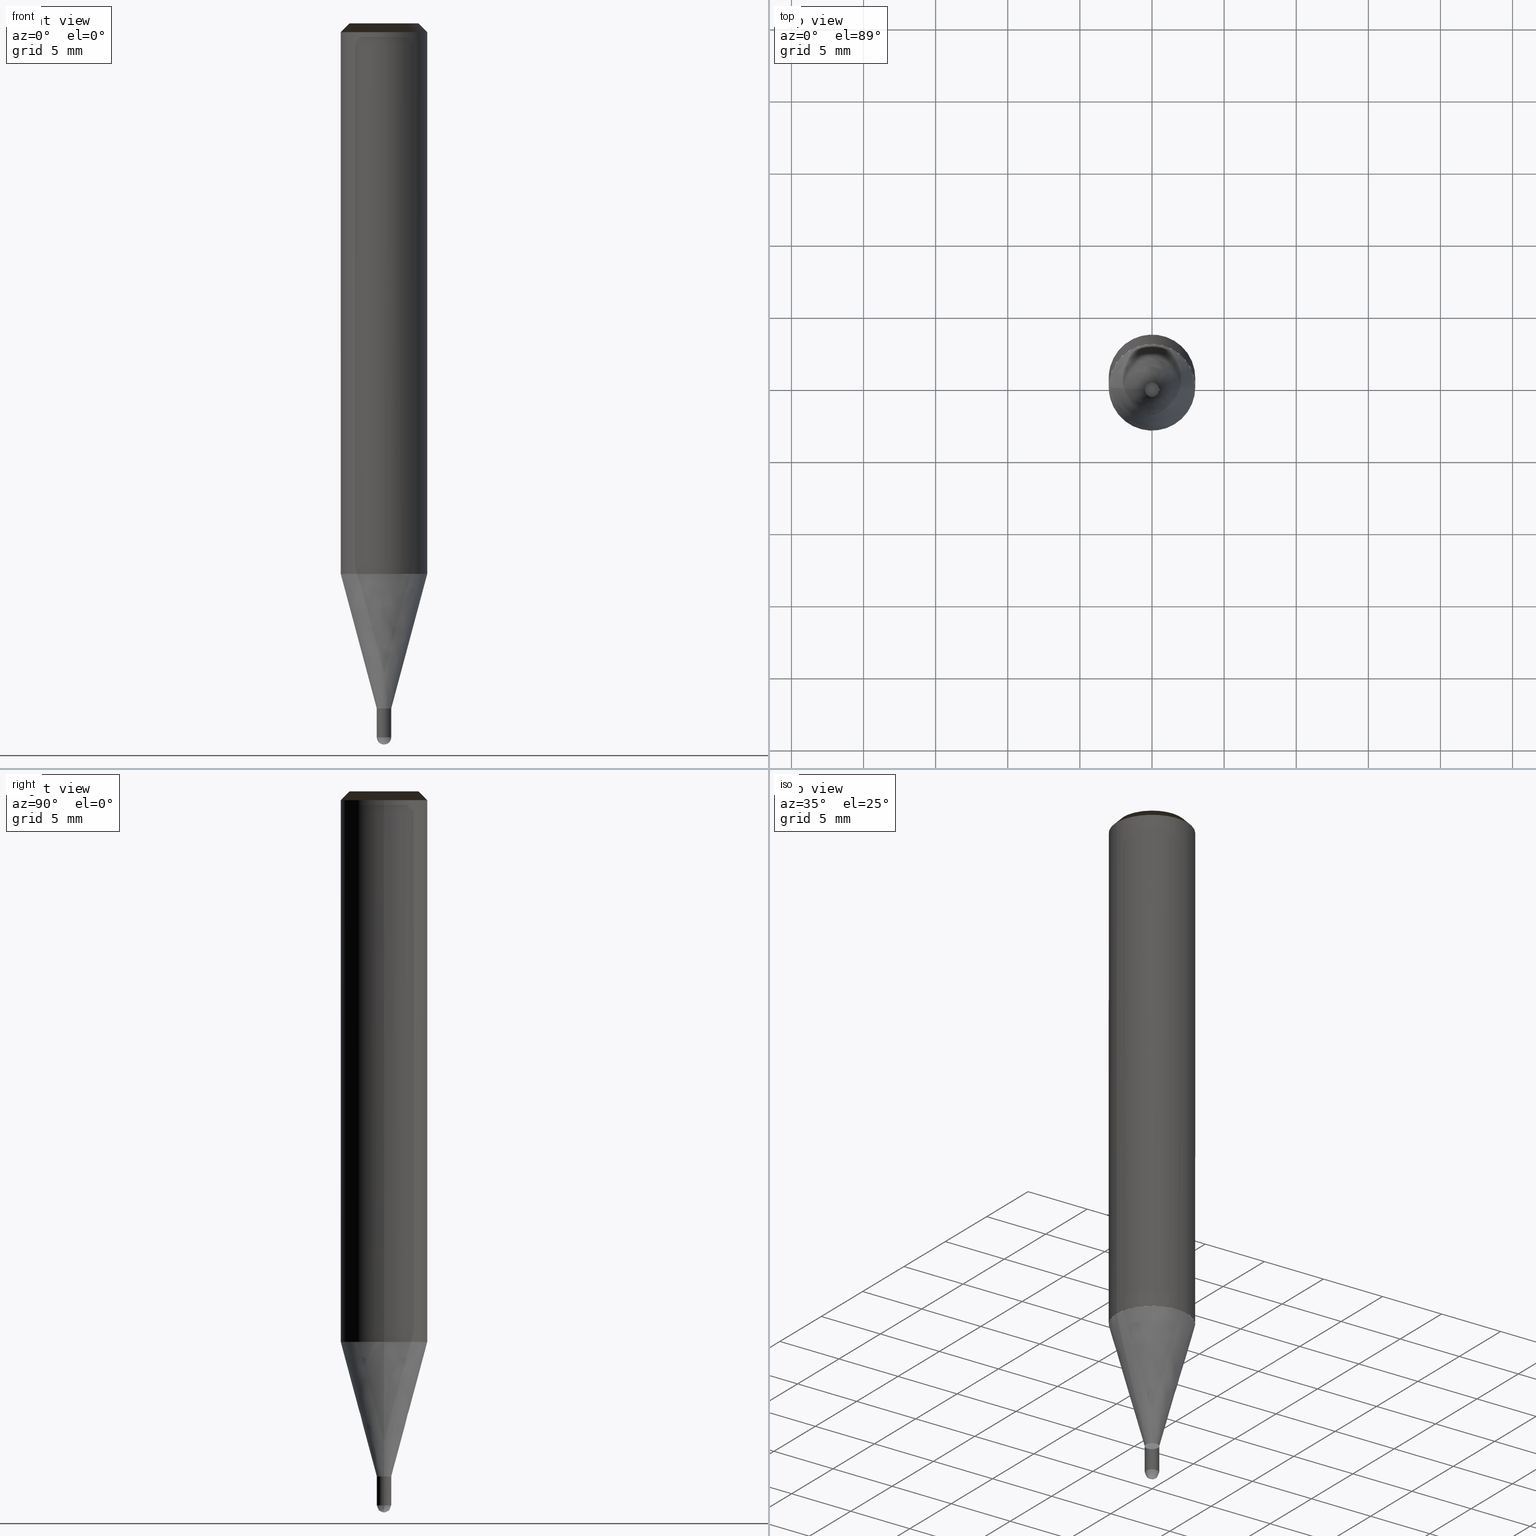
[diagram: canonical four-view strip — front | top / right | iso, engineering-drawing reading convention]
A machine part, canonical four-view strip (front | top / right | iso — engineering-drawing reading convention). The complete STEP part file that produces these views, byte-faithful:
ISO-10303-21;
HEADER;
/* Generated by ISBE GmbH (www.isbe.de) */
/* OPTION: using custom schema-name function */

FILE_DESCRIPTION(
/* description */ (''),
/* implementation_level */ '2;1');

FILE_NAME(
/*name*/ 'SHBS-2010-S06-STH',
/*time_stamp*/'2023-9-12T13:43:45',
/*author*/ ('ISBE GmbH'),
/*organization*/ ('ISBE GmbH'),
/*preprocessor_version*/ 'STEP IO v1.0',
/*originating_system*/ '',
/*authorisation*/ '');

FILE_SCHEMA (('AUTOMOTIVE_DESIGN'));
ENDSEC;

DATA;
#10=SHAPE_DEFINITION_REPRESENTATION(#11,#57);
#11=PRODUCT_DEFINITION_SHAPE('Document','',#13);
#12=PRODUCT_DEFINITION_CONTEXT('3D Mechanical Parts',#17,'design');
#13=PRODUCT_DEFINITION('A','First version',#14,#12);
#14=PRODUCT_DEFINITION_FORMATION_WITH_SPECIFIED_SOURCE('A','First version',#19,.MADE.);
#15=PRODUCT_RELATED_PRODUCT_CATEGORY('tool','tool',(#19));
#16=APPLICATION_PROTOCOL_DEFINITION('Draft International Standard', 'automotive_design',1999,#17);
#17=APPLICATION_CONTEXT('data for automotive mechanical design processes');
#18=PRODUCT_CONTEXT('3D Mechanical Parts',#17,'mechanical');
#19=PRODUCT('Document','Document','ISBE converted to STEP',(#18));
#20=(
LENGTH_UNIT()
NAMED_UNIT(*)
SI_UNIT(.MILLI.,.METRE.)
);
#21=(
NAMED_UNIT(*)
PLANE_ANGLE_UNIT()
SI_UNIT($,.RADIAN.)
);
#22=DIMENSIONAL_EXPONENTS(0.,0.,0.,0.,0.,0.,0.);
#23=PLANE_ANGLE_MEASURE_WITH_UNIT(PLANE_ANGLE_MEASURE(0.01745329252),#21);
#24=(
CONVERSION_BASED_UNIT('DEGREES',#23)
NAMED_UNIT(#22)
PLANE_ANGLE_UNIT()
);
#25=(
NAMED_UNIT(*)
SI_UNIT($,.STERADIAN.)
SOLID_ANGLE_UNIT()
);
#26=UNCERTAINTY_MEASURE_WITH_UNIT(LENGTH_MEASURE(0.001),#20, 'DISTANCE_ACCURACY_VALUE', 'Maximum model space distance between geometric entities at asserted connectivities');
#27=(
GEOMETRIC_REPRESENTATION_CONTEXT(3)
GLOBAL_UNCERTAINTY_ASSIGNED_CONTEXT((#26))
GLOBAL_UNIT_ASSIGNED_CONTEXT((#25,#24,#20))
REPRESENTATION_CONTEXT('ID1','3D')
);
#28=CARTESIAN_POINT('',(0.0,0.0,0.0));
#29=DIRECTION('',(1.0,0.0,0.0));
#30=DIRECTION('',(0.0,0.0,1.0));
#31=AXIS2_PLACEMENT_3D('',#28,#30,#29);
#32=CARTESIAN_POINT('',(0.0,0.0,0.0));
#33=DIRECTION('',(1.0,0.0,0.0));
#34=DIRECTION('',(0.0,0.0,1.0));
#35=AXIS2_PLACEMENT_3D('',#32,#34,#33);
#36=CARTESIAN_POINT('',(0.0,0.0,0.0));
#37=DIRECTION('',(1.0,0.0,0.0));
#38=DIRECTION('',(0.0,0.0,1.0));
#39=AXIS2_PLACEMENT_3D('',#36,#38,#37);
#40=CARTESIAN_POINT('',(0.0,0.0,0.0));
#41=DIRECTION('',(0.0,0.0,1.0));
#42=DIRECTION('',(1.0,0.0,0.0));
#43=AXIS2_PLACEMENT_3D('MCS',#40,#42,#41);
#44=CARTESIAN_POINT('',(0.0,0.0,38.169));
#45=DIRECTION('',(0.0,0.0,1.0));
#46=DIRECTION('',(1.0,0.0,0.0));
#47=AXIS2_PLACEMENT_3D('PCS',#44,#46,#45);
#48=CARTESIAN_POINT('',(0.0,0.0,-11.831));
#49=DIRECTION('',(0.0,0.0,1.0));
#50=DIRECTION('',(1.0,0.0,0.0));
#51=AXIS2_PLACEMENT_3D('CIP',#48,#50,#49);
#52=CARTESIAN_POINT('',(0.0,-0.5,-11.831));
#53=DIRECTION('',(0.0,0.0,1.0));
#54=DIRECTION('',(1.0,0.0,0.0));
#55=AXIS2_PLACEMENT_3D('CRP',#52,#54,#53);
#57=SHAPE_REPRESENTATION('Document',(#31,#35,#39,#43,#47,#51,#55),#27);
#58=DIRECTION('',(1.0,0.0,0.0));
#59=DIRECTION('',(0.0,0.0,1.0));
#60=CARTESIAN_POINT('',(-0.004999745345,-0.00005046272,-11.830919850466));
#61=CARTESIAN_POINT('',(-0.004842960385,-0.015276506175,-11.8307431081));
#62=CARTESIAN_POINT('',(-0.00464572897,-0.031696458389,-11.829972696375));
#63=CARTESIAN_POINT('',(-0.004394710529,-0.047809956029,-11.828689556475));
#64=CARTESIAN_POINT('',(-0.00405990923,-0.063809554592,-11.826895006912));
#65=CARTESIAN_POINT('',(-0.003613461023,-0.079718094076,-11.824590891707));
#66=CARTESIAN_POINT('',(-0.00302835103,-0.095531326913,-11.821779578496));
#67=CARTESIAN_POINT('',(-0.002278364859,-0.111237136631,-11.818463956091));
#68=CARTESIAN_POINT('',(-0.001338183743,-0.126820232017,-11.81464743152));
#69=CARTESIAN_POINT('',(-0.000183509393,-0.142263674959,-11.810333926518));
#70=CARTESIAN_POINT('',(0.001208804149,-0.157549471783,-11.805527873505));
#71=CARTESIAN_POINT('',(0.00286061822,-0.17265883142,-11.800234211025));
#72=CARTESIAN_POINT('',(0.004792379331,-0.187572290966,-11.794458378673));
#73=CARTESIAN_POINT('',(0.007022992398,-0.202269785918,-11.788206311508));
#74=CARTESIAN_POINT('',(0.009569698402,-0.216730698426,-11.781484433951));
#75=CARTESIAN_POINT('',(0.012447957291,-0.230933899296,-11.774299653187));
#76=CARTESIAN_POINT('',(0.015671336936,-0.244857791707,-11.766659352062));
#77=CARTESIAN_POINT('',(0.019251408963,-0.258480360904,-11.758571381503));
#78=CARTESIAN_POINT('',(0.023197652257,-0.271779232171,-11.750044052446));
#79=CARTESIAN_POINT('',(0.027517364988,-0.284731738346,-11.741086127298));
#80=CARTESIAN_POINT('',(0.032215585999,-0.297314997418,-11.731706810934));
#81=CARTESIAN_POINT('',(0.037295026389,-0.309506000365,-11.721915741234));
#82=CARTESIAN_POINT('',(0.042756012132,-0.321281709015,-11.711722979185));
#83=CARTESIAN_POINT('',(0.048596438531,-0.332619163494,-11.701138998538));
#84=CARTESIAN_POINT('',(0.054811737272,-0.343495598605,-11.690174675049));
#85=CARTESIAN_POINT('',(0.061394856808,-0.353888568272,-11.678841275302));
#86=CARTESIAN_POINT('',(0.06833625671,-0.363776077082,-11.667150445131));
#87=CARTESIAN_POINT('',(0.075623916555,-0.373136717738,-11.655114197654));
#88=CARTESIAN_POINT('',(0.083243359847,-0.381949813177,-11.642744900929));
#89=CARTESIAN_POINT('',(0.091177693304,-0.390195561959,-11.630055265246));
#90=CARTESIAN_POINT('',(0.099407661785,-0.397855185439,-11.617058330061));
#91=CARTESIAN_POINT('',(0.107911718954,-0.404911075179,-11.603767450605));
#92=CARTESIAN_POINT('',(0.116666113651,-0.411346938977,-11.590196284155));
#93=CARTESIAN_POINT('',(0.125644991799,-0.417147943869,-11.576358776002));
#94=CARTESIAN_POINT('',(0.134820513492,-0.422300854436,-11.56226914512));
#95=CARTESIAN_POINT('',(0.144162984768,-0.426794164739,-11.547941869559));
#96=CARTESIAN_POINT('',(0.153641003417,-0.430618222271,-11.533391671561));
#97=CARTESIAN_POINT('',(0.163221617973,-0.433765342309,-11.51863350244));
#98=CARTESIAN_POINT('',(0.172870498926,-0.436229911167,-11.503682527211));
#99=CARTESIAN_POINT('',(0.182552121012,-0.438008476913,-11.488554109012));
#100=CARTESIAN_POINT('',(0.192229955294,-0.439099826235,-11.473263793316));
#101=CARTESIAN_POINT('',(0.201866669635,-0.43950504628,-11.457827291955));
#102=CARTESIAN_POINT('',(0.211424336029,-0.439227570426,-11.442260466978));
#103=CARTESIAN_POINT('',(0.220864643153,-0.438273207113,-11.426579314351));
#104=CARTESIAN_POINT('',(0.230149112446,-0.436650151055,-11.410799947517));
#105=CARTESIAN_POINT('',(0.239239315921,-0.434368976329,-11.394938580842));
#106=CARTESIAN_POINT('',(0.248097093905,-0.431442611039,-11.379011512954));
#107=CARTESIAN_POINT('',(0.256684770868,-0.427886293462,-11.36303510999));
#108=CARTESIAN_POINT('',(0.264965367515,-0.4237175098,-11.347025788786));
#109=CARTESIAN_POINT('',(0.272902807337,-0.418955913847,-11.331));
#110=CARTESIAN_POINT('',(0.30899103303,-0.393096097038,-11.254076923077));
#111=CARTESIAN_POINT('',(0.342643061986,-0.364136968835,-11.177153846154));
#112=CARTESIAN_POINT('',(0.373593569472,-0.332306853449,-11.100230769231));
#113=CARTESIAN_POINT('',(0.401598530525,-0.297856710988,-11.023307692308));
#114=CARTESIAN_POINT('',(0.426437143931,-0.261058158799,-10.946384615385));
#115=CARTESIAN_POINT('',(0.447913573107,-0.22220132994,-10.869461538462));
#116=CARTESIAN_POINT('',(0.465858490137,-0.181592585661,-10.792538461538));
#117=CARTESIAN_POINT('',(0.480130410826,-0.139552099948,-10.715615384615));
#118=CARTESIAN_POINT('',(0.490616810204,-0.096411335151,-10.638692307692));
#119=CARTESIAN_POINT('',(0.497235009715,-0.052510428619,-10.561769230769));
#120=CARTESIAN_POINT('',(0.499932829089,-0.00819551093,-10.484846153846));
#121=CARTESIAN_POINT('',(0.498688997744,0.036184023122,-10.407923076923));
#122=CARTESIAN_POINT('',(0.493513322495,0.080278269287,-10.331));
#123=CARTESIAN_POINT('',(0.484446610233,0.123739572626,-10.254076923077));
#124=CARTESIAN_POINT('',(0.471560346187,0.166225268549,-10.177153846154));
#125=CARTESIAN_POINT('',(0.454956130309,0.207400384508,-10.100230769231));
#126=CARTESIAN_POINT('',(0.434764876227,0.246940281039,-10.023307692308));
#127=CARTESIAN_POINT('',(0.411145779068,0.284533211339,-9.946384615385));
#128=CARTESIAN_POINT('',(0.384285060312,0.319882779188,-9.869461538462));
#129=CARTESIAN_POINT('',(0.354394499554,0.352710275844,-9.792538461538));
#130=CARTESIAN_POINT('',(0.321709764754,0.382756877485,-9.715615384615));
#131=CARTESIAN_POINT('',(0.286488554148,0.409785685868,-9.638692307692));
#132=CARTESIAN_POINT('',(0.249008564463,0.43358359612,-9.561769230769));
#133=CARTESIAN_POINT('',(0.209565301454,0.453962976933,-9.484846153846));
#134=CARTESIAN_POINT('',(0.168469750032,0.470763149922,-9.407923076923));
#135=CARTESIAN_POINT('',(0.126045922344,0.483851656461,-9.331));
#136=CARTESIAN_POINT('',(0.004999745345,0.00005046272,-11.830919850466));
#137=CARTESIAN_POINT('',(0.004842960385,0.015276506175,-11.8307431081));
#138=CARTESIAN_POINT('',(0.00464572897,0.031696458389,-11.829972696375));
#139=CARTESIAN_POINT('',(0.004394710529,0.047809956029,-11.828689556475));
#140=CARTESIAN_POINT('',(0.00405990923,0.063809554592,-11.826895006912));
#141=CARTESIAN_POINT('',(0.003613461023,0.079718094076,-11.824590891707));
#142=CARTESIAN_POINT('',(0.00302835103,0.095531326913,-11.821779578496));
#143=CARTESIAN_POINT('',(0.002278364859,0.111237136631,-11.818463956091));
#144=CARTESIAN_POINT('',(0.001338183743,0.126820232017,-11.81464743152));
#145=CARTESIAN_POINT('',(0.000183509393,0.142263674959,-11.810333926518));
#146=CARTESIAN_POINT('',(-0.001208804149,0.157549471783,-11.805527873505));
#147=CARTESIAN_POINT('',(-0.00286061822,0.17265883142,-11.800234211025));
#148=CARTESIAN_POINT('',(-0.004792379331,0.187572290966,-11.794458378673));
#149=CARTESIAN_POINT('',(-0.007022992398,0.202269785918,-11.788206311508));
#150=CARTESIAN_POINT('',(-0.009569698402,0.216730698426,-11.781484433951));
#151=CARTESIAN_POINT('',(-0.012447957291,0.230933899296,-11.774299653187));
#152=CARTESIAN_POINT('',(-0.015671336936,0.244857791707,-11.766659352062));
#153=CARTESIAN_POINT('',(-0.019251408963,0.258480360904,-11.758571381503));
#154=CARTESIAN_POINT('',(-0.023197652257,0.271779232171,-11.750044052446));
#155=CARTESIAN_POINT('',(-0.027517364988,0.284731738346,-11.741086127298));
#156=CARTESIAN_POINT('',(-0.032215585999,0.297314997418,-11.731706810934));
#157=CARTESIAN_POINT('',(-0.037295026389,0.309506000365,-11.721915741234));
#158=CARTESIAN_POINT('',(-0.042756012132,0.321281709015,-11.711722979185));
#159=CARTESIAN_POINT('',(-0.048596438531,0.332619163494,-11.701138998538));
#160=CARTESIAN_POINT('',(-0.054811737272,0.343495598605,-11.690174675049));
#161=CARTESIAN_POINT('',(-0.061394856808,0.353888568272,-11.678841275302));
#162=CARTESIAN_POINT('',(-0.06833625671,0.363776077082,-11.667150445131));
#163=CARTESIAN_POINT('',(-0.075623916555,0.373136717738,-11.655114197654));
#164=CARTESIAN_POINT('',(-0.083243359847,0.381949813177,-11.642744900929));
#165=CARTESIAN_POINT('',(-0.091177693304,0.390195561959,-11.630055265246));
#166=CARTESIAN_POINT('',(-0.099407661785,0.397855185439,-11.617058330061));
#167=CARTESIAN_POINT('',(-0.107911718954,0.404911075179,-11.603767450605));
#168=CARTESIAN_POINT('',(-0.116666113651,0.411346938977,-11.590196284155));
#169=CARTESIAN_POINT('',(-0.125644991799,0.417147943869,-11.576358776002));
#170=CARTESIAN_POINT('',(-0.134820513492,0.422300854436,-11.56226914512));
#171=CARTESIAN_POINT('',(-0.144162984768,0.426794164739,-11.547941869559));
#172=CARTESIAN_POINT('',(-0.153641003417,0.430618222271,-11.533391671561));
#173=CARTESIAN_POINT('',(-0.163221617973,0.433765342309,-11.51863350244));
#174=CARTESIAN_POINT('',(-0.172870498926,0.436229911167,-11.503682527211));
#175=CARTESIAN_POINT('',(-0.182552121012,0.438008476913,-11.488554109012));
#176=CARTESIAN_POINT('',(-0.192229955294,0.439099826235,-11.473263793316));
#177=CARTESIAN_POINT('',(-0.201866669635,0.43950504628,-11.457827291955));
#178=CARTESIAN_POINT('',(-0.211424336029,0.439227570426,-11.442260466978));
#179=CARTESIAN_POINT('',(-0.220864643153,0.438273207113,-11.426579314351));
#180=CARTESIAN_POINT('',(-0.230149112446,0.436650151055,-11.410799947517));
#181=CARTESIAN_POINT('',(-0.239239315921,0.434368976329,-11.394938580842));
#182=CARTESIAN_POINT('',(-0.248097093905,0.431442611039,-11.379011512954));
#183=CARTESIAN_POINT('',(-0.256684770868,0.427886293462,-11.36303510999));
#184=CARTESIAN_POINT('',(-0.264965367515,0.4237175098,-11.347025788786));
#185=CARTESIAN_POINT('',(-0.272902807337,0.418955913847,-11.331));
#186=CARTESIAN_POINT('',(-0.30899103303,0.393096097038,-11.254076923077));
#187=CARTESIAN_POINT('',(-0.342643061986,0.364136968835,-11.177153846154));
#188=CARTESIAN_POINT('',(-0.373593569472,0.332306853449,-11.100230769231));
#189=CARTESIAN_POINT('',(-0.401598530525,0.297856710988,-11.023307692308));
#190=CARTESIAN_POINT('',(-0.426437143931,0.261058158799,-10.946384615385));
#191=CARTESIAN_POINT('',(-0.447913573107,0.22220132994,-10.869461538462));
#192=CARTESIAN_POINT('',(-0.465858490137,0.181592585661,-10.792538461538));
#193=CARTESIAN_POINT('',(-0.480130410826,0.139552099948,-10.715615384615));
#194=CARTESIAN_POINT('',(-0.490616810204,0.096411335151,-10.638692307692));
#195=CARTESIAN_POINT('',(-0.497235009715,0.052510428619,-10.561769230769));
#196=CARTESIAN_POINT('',(-0.499932829089,0.00819551093,-10.484846153846));
#197=CARTESIAN_POINT('',(-0.498688997744,-0.036184023122,-10.407923076923));
#198=CARTESIAN_POINT('',(-0.493513322495,-0.080278269287,-10.331));
#199=CARTESIAN_POINT('',(-0.484446610233,-0.123739572626,-10.254076923077));
#200=CARTESIAN_POINT('',(-0.471560346187,-0.166225268549,-10.177153846154));
#201=CARTESIAN_POINT('',(-0.454956130309,-0.207400384508,-10.100230769231));
#202=CARTESIAN_POINT('',(-0.434764876227,-0.246940281039,-10.023307692308));
#203=CARTESIAN_POINT('',(-0.411145779068,-0.284533211339,-9.946384615385));
#204=CARTESIAN_POINT('',(-0.384285060312,-0.319882779188,-9.869461538462));
#205=CARTESIAN_POINT('',(-0.354394499554,-0.352710275844,-9.792538461538));
#206=CARTESIAN_POINT('',(-0.321709764754,-0.382756877485,-9.715615384615));
#207=CARTESIAN_POINT('',(-0.286488554148,-0.409785685868,-9.638692307692));
#208=CARTESIAN_POINT('',(-0.249008564463,-0.43358359612,-9.561769230769));
#209=CARTESIAN_POINT('',(-0.209565301454,-0.453962976933,-9.484846153846));
#210=CARTESIAN_POINT('',(-0.168469750032,-0.470763149922,-9.407923076923));
#211=CARTESIAN_POINT('',(-0.126045922344,-0.483851656461,-9.331));
#212=CARTESIAN_POINT('',(0.0,0.0,-11.831));
#213=CARTESIAN_POINT('',(0.5,0.0,-11.831));
#214=CARTESIAN_POINT('',(0.5,0.5,-11.831));
#215=CARTESIAN_POINT('',(0.0,0.5,-11.831));
#216=CARTESIAN_POINT('',(-0.5,0.5,-11.831));
#217=CARTESIAN_POINT('',(-0.5,0.0,-11.831));
#218=CARTESIAN_POINT('',(0.5,0.0,-11.331));
#219=CARTESIAN_POINT('',(0.5,0.5,-11.331));
#220=CARTESIAN_POINT('',(0.0,0.5,-11.331));
#221=CARTESIAN_POINT('',(-0.5,0.5,-11.331));
#222=CARTESIAN_POINT('',(-0.5,0.0,-11.331));
#223=CARTESIAN_POINT('',(0.5,0.0,-9.331));
#224=CARTESIAN_POINT('',(0.5,0.5,-9.331));
#225=CARTESIAN_POINT('',(0.0,0.5,-9.331));
#226=CARTESIAN_POINT('',(-0.5,0.5,-9.331));
#227=CARTESIAN_POINT('',(-0.5,0.0,-9.331));
#228=CARTESIAN_POINT('',(0.0,0.0,-9.331));
#229=CARTESIAN_POINT('',(-0.5,-0.5,-11.831));
#230=CARTESIAN_POINT('',(0.0,-0.5,-11.831));
#231=CARTESIAN_POINT('',(0.5,-0.5,-11.831));
#232=CARTESIAN_POINT('',(-0.5,-0.5,-11.331));
#233=CARTESIAN_POINT('',(0.0,-0.5,-11.331));
#234=CARTESIAN_POINT('',(0.5,-0.5,-11.331));
#235=CARTESIAN_POINT('',(-0.5,-0.5,-9.331));
#236=CARTESIAN_POINT('',(0.0,-0.5,-9.331));
#237=CARTESIAN_POINT('',(0.5,-0.5,-9.331));
#238=CARTESIAN_POINT('',(0.5,0.0,-9.330127018922));
#239=CARTESIAN_POINT('',(0.5,0.5,-9.330127018922));
#240=CARTESIAN_POINT('',(0.0,0.5,-9.330127018922));
#241=CARTESIAN_POINT('',(-0.5,0.5,-9.330127018922));
#242=CARTESIAN_POINT('',(-0.5,0.0,-9.330127018922));
#243=CARTESIAN_POINT('',(3.0,0.0,-0.0));
#244=CARTESIAN_POINT('',(3.0,3.0,-0.0));
#245=CARTESIAN_POINT('',(0.0,3.0,-0.0));
#246=CARTESIAN_POINT('',(-3.0,3.0,-0.0));
#247=CARTESIAN_POINT('',(-3.0,0.0,-0.0));
#248=CARTESIAN_POINT('',(3.0,0.0,37.569));
#249=CARTESIAN_POINT('',(3.0,3.0,37.569));
#250=CARTESIAN_POINT('',(0.0,3.0,37.569));
#251=CARTESIAN_POINT('',(-3.0,3.0,37.569));
#252=CARTESIAN_POINT('',(-3.0,0.0,37.569));
#253=CARTESIAN_POINT('',(2.4,0.0,38.169));
#254=CARTESIAN_POINT('',(2.4,2.4,38.169));
#255=CARTESIAN_POINT('',(0.0,2.4,38.169));
#256=CARTESIAN_POINT('',(-2.4,2.4,38.169));
#257=CARTESIAN_POINT('',(-2.4,0.0,38.169));
#258=CARTESIAN_POINT('',(0.0,0.0,38.169));
#259=CARTESIAN_POINT('',(-0.5,-0.5,-9.330127018922));
#260=CARTESIAN_POINT('',(0.0,-0.5,-9.330127018922));
#261=CARTESIAN_POINT('',(0.5,-0.5,-9.330127018922));
#262=CARTESIAN_POINT('',(-3.0,-3.0,-0.0));
#263=CARTESIAN_POINT('',(0.0,-3.0,-0.0));
#264=CARTESIAN_POINT('',(3.0,-3.0,-0.0));
#265=CARTESIAN_POINT('',(-3.0,-3.0,37.569));
#266=CARTESIAN_POINT('',(0.0,-3.0,37.569));
#267=CARTESIAN_POINT('',(3.0,-3.0,37.569));
#268=CARTESIAN_POINT('',(-2.4,-2.4,38.169));
#269=CARTESIAN_POINT('',(0.0,-2.4,38.169));
#270=CARTESIAN_POINT('',(2.4,-2.4,38.169));
#271=(
BOUNDED_CURVE()
B_SPLINE_CURVE(1,(#60,#61,#62,#63,#64,#65,#66,#67,#68,#69,#70,#71,#72,#73,#74,#75,#76,#77,#78,#79,#80,#81,#82,#83,#84,#85,#86,#87,#88,#89,#90,#91,#92,#93,#94,#95,#96,#97,#98,#99,#100,#101,#102,#103,#104,#105,#106,#107,#108,#109,#110,#111,#112,#113,#114,#115,#116,#117,#118,#119,#120,#121,#122,#123,#124,#125,#126,#127,#128,#129,#130,#131,#132,#133,#134,#135),.UNSPECIFIED.,.F.,.F.)
B_SPLINE_CURVE_WITH_KNOTS((2,1,1,1,1,1,1,1,1,1,1,1,1,1,1,1,1,1,1,1,1,1,1,1,1,1,1,1,1,1,1,1,1,1,1,1,1,1,1,1,1,1,1,1,1,1,1,1,1,1,1,1,1,1,1,1,1,1,1,1,1,1,1,1,1,1,1,1,1,1,1,1,1,1,1,2),
(0.0,0.004846028604,0.010077541316,0.015222257562,0.020346909195,0.025464344995,0.030578952816,0.03569280936,0.040807204257,0.045923152013,0.051041600708,0.056163528887,0.061289993965,0.06642215636,0.071561289668,0.076708781705,0.081866128901,0.087034925459,0.092216848215,0.097413637915,0.102627077523,0.107858968174,0.113111103351,0.118385241896,0.123683080458,0.129006225961,0.13435616868,0.139734256461,0.14514167057,0.150579403624,0.15604823996,0.161548738763,0.167081220172,0.172645754536,0.178242154904,0.183869972794,0.189528497204,0.195216756807,0.2009335252,0.206677329068,0.212446459085,0.218238983362,0.22405276321,0.22988547103,0.235734610062,0.241597535789,0.247471478754,0.253353568547,0.259240858737,0.265130352512,0.293394569723,0.321658786934,0.349923004145,0.378187221357,0.406451438568,0.434715655779,0.46297987299,0.491244090201,0.519508307412,0.547772524623,0.576036741834,0.604300959045,0.632565176256,0.660829393467,0.689093610678,0.717357827889,0.7456220451,0.773886262311,0.802150479523,0.830414696734,0.858678913945,0.886943131156,0.915207348367,0.943471565578,0.971735782789,1.0),.UNSPECIFIED.)
CURVE()
GEOMETRIC_REPRESENTATION_ITEM()
RATIONAL_B_SPLINE_CURVE((1.0,1.0,1.0,1.0,1.0,1.0,1.0,1.0,1.0,1.0,1.0,1.0,1.0,1.0,1.0,1.0,1.0,1.0,1.0,1.0,1.0,1.0,1.0,1.0,1.0,1.0,1.0,1.0,1.0,1.0,1.0,1.0,1.0,1.0,1.0,1.0,1.0,1.0,1.0,1.0,1.0,1.0,1.0,1.0,1.0,1.0,1.0,1.0,1.0,1.0,1.0,1.0,1.0,1.0,1.0,1.0,1.0,1.0,1.0,1.0,1.0,1.0,1.0,1.0,1.0,1.0,1.0,1.0,1.0,1.0,1.0,1.0,1.0,1.0,1.0,1.0))
REPRESENTATION_ITEM('')
);
#272=(
BOUNDED_CURVE()
B_SPLINE_CURVE(1,(#136,#137,#138,#139,#140,#141,#142,#143,#144,#145,#146,#147,#148,#149,#150,#151,#152,#153,#154,#155,#156,#157,#158,#159,#160,#161,#162,#163,#164,#165,#166,#167,#168,#169,#170,#171,#172,#173,#174,#175,#176,#177,#178,#179,#180,#181,#182,#183,#184,#185,#186,#187,#188,#189,#190,#191,#192,#193,#194,#195,#196,#197,#198,#199,#200,#201,#202,#203,#204,#205,#206,#207,#208,#209,#210,#211),.UNSPECIFIED.,.F.,.F.)
B_SPLINE_CURVE_WITH_KNOTS((2,1,1,1,1,1,1,1,1,1,1,1,1,1,1,1,1,1,1,1,1,1,1,1,1,1,1,1,1,1,1,1,1,1,1,1,1,1,1,1,1,1,1,1,1,1,1,1,1,1,1,1,1,1,1,1,1,1,1,1,1,1,1,1,1,1,1,1,1,1,1,1,1,1,1,2),
(0.0,0.004846028604,0.010077541316,0.015222257562,0.020346909195,0.025464344995,0.030578952816,0.03569280936,0.040807204257,0.045923152013,0.051041600708,0.056163528887,0.061289993965,0.06642215636,0.071561289668,0.076708781705,0.081866128901,0.087034925459,0.092216848215,0.097413637915,0.102627077523,0.107858968174,0.113111103351,0.118385241896,0.123683080458,0.129006225961,0.13435616868,0.139734256461,0.14514167057,0.150579403624,0.15604823996,0.161548738763,0.167081220172,0.172645754536,0.178242154904,0.183869972794,0.189528497204,0.195216756807,0.2009335252,0.206677329068,0.212446459085,0.218238983362,0.22405276321,0.22988547103,0.235734610062,0.241597535789,0.247471478754,0.253353568547,0.259240858737,0.265130352512,0.293394569723,0.321658786934,0.349923004145,0.378187221357,0.406451438568,0.434715655779,0.46297987299,0.491244090201,0.519508307412,0.547772524623,0.576036741834,0.604300959045,0.632565176256,0.660829393467,0.689093610678,0.717357827889,0.7456220451,0.773886262311,0.802150479523,0.830414696734,0.858678913945,0.886943131156,0.915207348367,0.943471565578,0.971735782789,1.0),.UNSPECIFIED.)
CURVE()
GEOMETRIC_REPRESENTATION_ITEM()
RATIONAL_B_SPLINE_CURVE((1.0,1.0,1.0,1.0,1.0,1.0,1.0,1.0,1.0,1.0,1.0,1.0,1.0,1.0,1.0,1.0,1.0,1.0,1.0,1.0,1.0,1.0,1.0,1.0,1.0,1.0,1.0,1.0,1.0,1.0,1.0,1.0,1.0,1.0,1.0,1.0,1.0,1.0,1.0,1.0,1.0,1.0,1.0,1.0,1.0,1.0,1.0,1.0,1.0,1.0,1.0,1.0,1.0,1.0,1.0,1.0,1.0,1.0,1.0,1.0,1.0,1.0,1.0,1.0,1.0,1.0,1.0,1.0,1.0,1.0,1.0,1.0,1.0,1.0,1.0,1.0))
REPRESENTATION_ITEM('')
);
#273=SHAPE_REPRESENTATION_RELATIONSHIP('','',#57,#274);
#274=GEOMETRICALLY_BOUNDED_WIREFRAME_SHAPE_REPRESENTATION('Curves',(#275,#31),#27);
#275=GEOMETRIC_CURVE_SET('CurveSet',(#271,#272));
#276=(
BOUNDED_SURFACE()
B_SPLINE_SURFACE(2,2,(
(#212,#212,#212,#212,#212),
(#213,#214,#215,#216,#217),
(#218,#219,#220,#221,#222)
), .UNSPECIFIED.,.F.,.F.,.F.)
B_SPLINE_SURFACE_WITH_KNOTS((3,3),(3,2,3),(
0.0,1.0),(
0.0,0.5,1.0), .UNSPECIFIED.)
GEOMETRIC_REPRESENTATION_ITEM()
RATIONAL_B_SPLINE_SURFACE(((1.0,0.707106781187,1.0,0.707106781187,1.0),
(0.707106781187,0.5,0.707106781187,0.5,0.707106781187),
(1.0,0.707106781187,1.0,0.707106781187,1.0)
))
REPRESENTATION_ITEM('')
SURFACE()
);
#277=(
BOUNDED_CURVE()
B_SPLINE_CURVE(2,(#218,#219,#220,#221,#222),.UNSPECIFIED.,.F.,.F.)
B_SPLINE_CURVE_WITH_KNOTS((3,2,3),
(0.0,0.5,1.0),.UNSPECIFIED.)
CURVE()
GEOMETRIC_REPRESENTATION_ITEM()
RATIONAL_B_SPLINE_CURVE((1.0,0.707106781187,1.0,0.707106781187,1.0))
REPRESENTATION_ITEM('')
);
#278=(
BOUNDED_CURVE()
B_SPLINE_CURVE(2,(#222,#217,#212),.UNSPECIFIED.,.F.,.F.)
B_SPLINE_CURVE_WITH_KNOTS((3,3),
(0.0,1.0),.UNSPECIFIED.)
CURVE()
GEOMETRIC_REPRESENTATION_ITEM()
RATIONAL_B_SPLINE_CURVE((1.0,0.707106781187,1.0))
REPRESENTATION_ITEM('')
);
#279=(
BOUNDED_CURVE()
B_SPLINE_CURVE(2,(#212,#213,#218),.UNSPECIFIED.,.F.,.F.)
B_SPLINE_CURVE_WITH_KNOTS((3,3),
(0.0,1.0),.UNSPECIFIED.)
CURVE()
GEOMETRIC_REPRESENTATION_ITEM()
RATIONAL_B_SPLINE_CURVE((1.0,0.707106781187,1.0))
REPRESENTATION_ITEM('')
);
#280=VERTEX_POINT('',#212);
#281=VERTEX_POINT('',#218);
#282=VERTEX_POINT('',#222);
#283=EDGE_CURVE('',#281,#282,#277,.T.);
#284=EDGE_CURVE('',#282,#280,#278,.T.);
#285=EDGE_CURVE('',#280,#281,#279,.T.);
#286=ORIENTED_EDGE('',*,*,#283,.T.);
#287=ORIENTED_EDGE('',*,*,#284,.T.);
#288=ORIENTED_EDGE('',*,*,#285,.T.);
#289=EDGE_LOOP('',(#286,#287,#288));
#290=FACE_OUTER_BOUND('',#289,.T.);
#291=ADVANCED_FACE('',(#290),#276,.T.);
#292=(
BOUNDED_SURFACE()
B_SPLINE_SURFACE(1,2,(
(#218,#219,#220,#221,#222),
(#223,#224,#225,#226,#227)
), .UNSPECIFIED.,.F.,.F.,.F.)
B_SPLINE_SURFACE_WITH_KNOTS((2,2),(3,2,3),(
0.0,1.0),(
0.0,0.5,1.0), .UNSPECIFIED.)
GEOMETRIC_REPRESENTATION_ITEM()
RATIONAL_B_SPLINE_SURFACE(((1.0,0.707106781187,1.0,0.707106781187,1.0),
(1.0,0.707106781187,1.0,0.707106781187,1.0)
))
REPRESENTATION_ITEM('')
SURFACE()
);
#293=(
BOUNDED_CURVE()
B_SPLINE_CURVE(2,(#223,#224,#225,#226,#227),.UNSPECIFIED.,.F.,.F.)
B_SPLINE_CURVE_WITH_KNOTS((3,2,3),
(0.0,0.5,1.0),.UNSPECIFIED.)
CURVE()
GEOMETRIC_REPRESENTATION_ITEM()
RATIONAL_B_SPLINE_CURVE((1.0,0.707106781187,1.0,0.707106781187,1.0))
REPRESENTATION_ITEM('')
);
#294=(
BOUNDED_CURVE()
B_SPLINE_CURVE(1,(#227,#222),.UNSPECIFIED.,.F.,.F.)
B_SPLINE_CURVE_WITH_KNOTS((2,2),
(0.0,1.0),.UNSPECIFIED.)
CURVE()
GEOMETRIC_REPRESENTATION_ITEM()
RATIONAL_B_SPLINE_CURVE((1.0,1.0))
REPRESENTATION_ITEM('')
);
#295=(
BOUNDED_CURVE()
B_SPLINE_CURVE(2,(#222,#221,#220,#219,#218),.UNSPECIFIED.,.F.,.F.)
B_SPLINE_CURVE_WITH_KNOTS((3,2,3),
(0.0,0.5,1.0),.UNSPECIFIED.)
CURVE()
GEOMETRIC_REPRESENTATION_ITEM()
RATIONAL_B_SPLINE_CURVE((1.0,0.707106781187,1.0,0.707106781187,1.0))
REPRESENTATION_ITEM('')
);
#296=(
BOUNDED_CURVE()
B_SPLINE_CURVE(1,(#218,#223),.UNSPECIFIED.,.F.,.F.)
B_SPLINE_CURVE_WITH_KNOTS((2,2),
(0.0,1.0),.UNSPECIFIED.)
CURVE()
GEOMETRIC_REPRESENTATION_ITEM()
RATIONAL_B_SPLINE_CURVE((1.0,1.0))
REPRESENTATION_ITEM('')
);
#297=VERTEX_POINT('',#218);
#298=VERTEX_POINT('',#222);
#299=VERTEX_POINT('',#223);
#300=VERTEX_POINT('',#227);
#301=EDGE_CURVE('',#299,#300,#293,.T.);
#302=EDGE_CURVE('',#300,#298,#294,.T.);
#303=EDGE_CURVE('',#298,#297,#295,.T.);
#304=EDGE_CURVE('',#297,#299,#296,.T.);
#305=ORIENTED_EDGE('',*,*,#301,.T.);
#306=ORIENTED_EDGE('',*,*,#302,.T.);
#307=ORIENTED_EDGE('',*,*,#303,.T.);
#308=ORIENTED_EDGE('',*,*,#304,.T.);
#309=EDGE_LOOP('',(#305,#306,#307,#308));
#310=FACE_OUTER_BOUND('',#309,.T.);
#311=ADVANCED_FACE('',(#310),#292,.T.);
#312=(
BOUNDED_SURFACE()
B_SPLINE_SURFACE(1,2,(
(#223,#224,#225,#226,#227),
(#228,#228,#228,#228,#228)
), .UNSPECIFIED.,.F.,.F.,.F.)
B_SPLINE_SURFACE_WITH_KNOTS((2,2),(3,2,3),(
0.0,1.0),(
0.0,0.5,1.0), .UNSPECIFIED.)
GEOMETRIC_REPRESENTATION_ITEM()
RATIONAL_B_SPLINE_SURFACE(((1.0,0.707106781187,1.0,0.707106781187,1.0),
(1.0,0.707106781187,1.0,0.707106781187,1.0)
))
REPRESENTATION_ITEM('')
SURFACE()
);
#313=(
BOUNDED_CURVE()
B_SPLINE_CURVE(1,(#228,#223),.UNSPECIFIED.,.F.,.F.)
B_SPLINE_CURVE_WITH_KNOTS((2,2),
(0.0,1.0),.UNSPECIFIED.)
CURVE()
GEOMETRIC_REPRESENTATION_ITEM()
RATIONAL_B_SPLINE_CURVE((1.0,1.0))
REPRESENTATION_ITEM('')
);
#314=(
BOUNDED_CURVE()
B_SPLINE_CURVE(2,(#223,#224,#225,#226,#227),.UNSPECIFIED.,.F.,.F.)
B_SPLINE_CURVE_WITH_KNOTS((3,2,3),
(0.0,0.5,1.0),.UNSPECIFIED.)
CURVE()
GEOMETRIC_REPRESENTATION_ITEM()
RATIONAL_B_SPLINE_CURVE((1.0,0.707106781187,1.0,0.707106781187,1.0))
REPRESENTATION_ITEM('')
);
#315=(
BOUNDED_CURVE()
B_SPLINE_CURVE(1,(#227,#228),.UNSPECIFIED.,.F.,.F.)
B_SPLINE_CURVE_WITH_KNOTS((2,2),
(0.0,1.0),.UNSPECIFIED.)
CURVE()
GEOMETRIC_REPRESENTATION_ITEM()
RATIONAL_B_SPLINE_CURVE((1.0,1.0))
REPRESENTATION_ITEM('')
);
#316=VERTEX_POINT('',#223);
#317=VERTEX_POINT('',#227);
#318=VERTEX_POINT('',#228);
#319=EDGE_CURVE('',#318,#316,#313,.T.);
#320=EDGE_CURVE('',#316,#317,#314,.T.);
#321=EDGE_CURVE('',#317,#318,#315,.T.);
#322=ORIENTED_EDGE('',*,*,#319,.T.);
#323=ORIENTED_EDGE('',*,*,#320,.T.);
#324=ORIENTED_EDGE('',*,*,#321,.T.);
#325=EDGE_LOOP('',(#322,#323,#324));
#326=FACE_OUTER_BOUND('',#325,.T.);
#327=ADVANCED_FACE('',(#326),#312,.T.);
#328=(
BOUNDED_SURFACE()
B_SPLINE_SURFACE(2,2,(
(#212,#212,#212,#212,#212),
(#217,#229,#230,#231,#213),
(#222,#232,#233,#234,#218)
), .UNSPECIFIED.,.F.,.F.,.F.)
B_SPLINE_SURFACE_WITH_KNOTS((3,3),(3,2,3),(
0.0,1.0),(
0.0,0.5,1.0), .UNSPECIFIED.)
GEOMETRIC_REPRESENTATION_ITEM()
RATIONAL_B_SPLINE_SURFACE(((1.0,0.707106781187,1.0,0.707106781187,1.0),
(0.707106781187,0.5,0.707106781187,0.5,0.707106781187),
(1.0,0.707106781187,1.0,0.707106781187,1.0)
))
REPRESENTATION_ITEM('')
SURFACE()
);
#329=(
BOUNDED_CURVE()
B_SPLINE_CURVE(2,(#222,#217,#212),.UNSPECIFIED.,.F.,.F.)
B_SPLINE_CURVE_WITH_KNOTS((3,3),
(0.0,1.0),.UNSPECIFIED.)
CURVE()
GEOMETRIC_REPRESENTATION_ITEM()
RATIONAL_B_SPLINE_CURVE((1.0,0.707106781187,1.0))
REPRESENTATION_ITEM('')
);
#330=(
BOUNDED_CURVE()
B_SPLINE_CURVE(2,(#212,#213,#218),.UNSPECIFIED.,.F.,.F.)
B_SPLINE_CURVE_WITH_KNOTS((3,3),
(0.0,1.0),.UNSPECIFIED.)
CURVE()
GEOMETRIC_REPRESENTATION_ITEM()
RATIONAL_B_SPLINE_CURVE((1.0,0.707106781187,1.0))
REPRESENTATION_ITEM('')
);
#331=(
BOUNDED_CURVE()
B_SPLINE_CURVE(2,(#218,#234,#233,#232,#222),.UNSPECIFIED.,.F.,.F.)
B_SPLINE_CURVE_WITH_KNOTS((3,2,3),
(0.0,0.5,1.0),.UNSPECIFIED.)
CURVE()
GEOMETRIC_REPRESENTATION_ITEM()
RATIONAL_B_SPLINE_CURVE((1.0,0.707106781187,1.0,0.707106781187,1.0))
REPRESENTATION_ITEM('')
);
#332=VERTEX_POINT('',#212);
#333=VERTEX_POINT('',#218);
#334=VERTEX_POINT('',#222);
#335=EDGE_CURVE('',#334,#332,#329,.T.);
#336=EDGE_CURVE('',#332,#333,#330,.T.);
#337=EDGE_CURVE('',#333,#334,#331,.T.);
#338=ORIENTED_EDGE('',*,*,#335,.T.);
#339=ORIENTED_EDGE('',*,*,#336,.T.);
#340=ORIENTED_EDGE('',*,*,#337,.T.);
#341=EDGE_LOOP('',(#338,#339,#340));
#342=FACE_OUTER_BOUND('',#341,.T.);
#343=ADVANCED_FACE('',(#342),#328,.T.);
#344=(
BOUNDED_SURFACE()
B_SPLINE_SURFACE(1,2,(
(#222,#232,#233,#234,#218),
(#227,#235,#236,#237,#223)
), .UNSPECIFIED.,.F.,.F.,.F.)
B_SPLINE_SURFACE_WITH_KNOTS((2,2),(3,2,3),(
0.0,1.0),(
0.0,0.5,1.0), .UNSPECIFIED.)
GEOMETRIC_REPRESENTATION_ITEM()
RATIONAL_B_SPLINE_SURFACE(((1.0,0.707106781187,1.0,0.707106781187,1.0),
(1.0,0.707106781187,1.0,0.707106781187,1.0)
))
REPRESENTATION_ITEM('')
SURFACE()
);
#345=(
BOUNDED_CURVE()
B_SPLINE_CURVE(1,(#227,#222),.UNSPECIFIED.,.F.,.F.)
B_SPLINE_CURVE_WITH_KNOTS((2,2),
(0.0,1.0),.UNSPECIFIED.)
CURVE()
GEOMETRIC_REPRESENTATION_ITEM()
RATIONAL_B_SPLINE_CURVE((1.0,1.0))
REPRESENTATION_ITEM('')
);
#346=(
BOUNDED_CURVE()
B_SPLINE_CURVE(2,(#222,#232,#233,#234,#218),.UNSPECIFIED.,.F.,.F.)
B_SPLINE_CURVE_WITH_KNOTS((3,2,3),
(0.0,0.5,1.0),.UNSPECIFIED.)
CURVE()
GEOMETRIC_REPRESENTATION_ITEM()
RATIONAL_B_SPLINE_CURVE((1.0,0.707106781187,1.0,0.707106781187,1.0))
REPRESENTATION_ITEM('')
);
#347=(
BOUNDED_CURVE()
B_SPLINE_CURVE(1,(#218,#223),.UNSPECIFIED.,.F.,.F.)
B_SPLINE_CURVE_WITH_KNOTS((2,2),
(0.0,1.0),.UNSPECIFIED.)
CURVE()
GEOMETRIC_REPRESENTATION_ITEM()
RATIONAL_B_SPLINE_CURVE((1.0,1.0))
REPRESENTATION_ITEM('')
);
#348=(
BOUNDED_CURVE()
B_SPLINE_CURVE(2,(#223,#237,#236,#235,#227),.UNSPECIFIED.,.F.,.F.)
B_SPLINE_CURVE_WITH_KNOTS((3,2,3),
(0.0,0.5,1.0),.UNSPECIFIED.)
CURVE()
GEOMETRIC_REPRESENTATION_ITEM()
RATIONAL_B_SPLINE_CURVE((1.0,0.707106781187,1.0,0.707106781187,1.0))
REPRESENTATION_ITEM('')
);
#349=VERTEX_POINT('',#218);
#350=VERTEX_POINT('',#222);
#351=VERTEX_POINT('',#223);
#352=VERTEX_POINT('',#227);
#353=EDGE_CURVE('',#352,#350,#345,.T.);
#354=EDGE_CURVE('',#350,#349,#346,.T.);
#355=EDGE_CURVE('',#349,#351,#347,.T.);
#356=EDGE_CURVE('',#351,#352,#348,.T.);
#357=ORIENTED_EDGE('',*,*,#353,.T.);
#358=ORIENTED_EDGE('',*,*,#354,.T.);
#359=ORIENTED_EDGE('',*,*,#355,.T.);
#360=ORIENTED_EDGE('',*,*,#356,.T.);
#361=EDGE_LOOP('',(#357,#358,#359,#360));
#362=FACE_OUTER_BOUND('',#361,.T.);
#363=ADVANCED_FACE('',(#362),#344,.T.);
#364=(
BOUNDED_SURFACE()
B_SPLINE_SURFACE(1,2,(
(#227,#235,#236,#237,#223),
(#228,#228,#228,#228,#228)
), .UNSPECIFIED.,.F.,.F.,.F.)
B_SPLINE_SURFACE_WITH_KNOTS((2,2),(3,2,3),(
0.0,1.0),(
0.0,0.5,1.0), .UNSPECIFIED.)
GEOMETRIC_REPRESENTATION_ITEM()
RATIONAL_B_SPLINE_SURFACE(((1.0,0.707106781187,1.0,0.707106781187,1.0),
(1.0,0.707106781187,1.0,0.707106781187,1.0)
))
REPRESENTATION_ITEM('')
SURFACE()
);
#365=(
BOUNDED_CURVE()
B_SPLINE_CURVE(1,(#228,#223),.UNSPECIFIED.,.F.,.F.)
B_SPLINE_CURVE_WITH_KNOTS((2,2),
(0.0,1.0),.UNSPECIFIED.)
CURVE()
GEOMETRIC_REPRESENTATION_ITEM()
RATIONAL_B_SPLINE_CURVE((1.0,1.0))
REPRESENTATION_ITEM('')
);
#366=(
BOUNDED_CURVE()
B_SPLINE_CURVE(2,(#223,#237,#236,#235,#227),.UNSPECIFIED.,.F.,.F.)
B_SPLINE_CURVE_WITH_KNOTS((3,2,3),
(0.0,0.5,1.0),.UNSPECIFIED.)
CURVE()
GEOMETRIC_REPRESENTATION_ITEM()
RATIONAL_B_SPLINE_CURVE((1.0,0.707106781187,1.0,0.707106781187,1.0))
REPRESENTATION_ITEM('')
);
#367=(
BOUNDED_CURVE()
B_SPLINE_CURVE(1,(#227,#228),.UNSPECIFIED.,.F.,.F.)
B_SPLINE_CURVE_WITH_KNOTS((2,2),
(0.0,1.0),.UNSPECIFIED.)
CURVE()
GEOMETRIC_REPRESENTATION_ITEM()
RATIONAL_B_SPLINE_CURVE((1.0,1.0))
REPRESENTATION_ITEM('')
);
#368=VERTEX_POINT('',#223);
#369=VERTEX_POINT('',#227);
#370=VERTEX_POINT('',#228);
#371=EDGE_CURVE('',#370,#368,#365,.T.);
#372=EDGE_CURVE('',#368,#369,#366,.T.);
#373=EDGE_CURVE('',#369,#370,#367,.T.);
#374=ORIENTED_EDGE('',*,*,#371,.T.);
#375=ORIENTED_EDGE('',*,*,#372,.T.);
#376=ORIENTED_EDGE('',*,*,#373,.T.);
#377=EDGE_LOOP('',(#374,#375,#376));
#378=FACE_OUTER_BOUND('',#377,.T.);
#379=ADVANCED_FACE('',(#378),#364,.T.);
#380=CLOSED_SHELL('',(#291,#311,#327,#343,#363,#379));
#381=SHAPE_REPRESENTATION_RELATIONSHIP('','',#57,#382);
#382=ADVANCED_BREP_SHAPE_REPRESENTATION('Solid0',(#383,#31),#27);
#383=MANIFOLD_SOLID_BREP('brep',#380);
#384=(
BOUNDED_SURFACE()
B_SPLINE_SURFACE(1,2,(
(#228,#228,#228,#228,#228),
(#223,#224,#225,#226,#227)
), .UNSPECIFIED.,.F.,.F.,.F.)
B_SPLINE_SURFACE_WITH_KNOTS((2,2),(3,2,3),(
0.0,1.0),(
0.0,0.5,1.0), .UNSPECIFIED.)
GEOMETRIC_REPRESENTATION_ITEM()
RATIONAL_B_SPLINE_SURFACE(((1.0,0.707106781187,1.0,0.707106781187,1.0),
(1.0,0.707106781187,1.0,0.707106781187,1.0)
))
REPRESENTATION_ITEM('')
SURFACE()
);
#385=(
BOUNDED_CURVE()
B_SPLINE_CURVE(2,(#223,#224,#225,#226,#227),.UNSPECIFIED.,.F.,.F.)
B_SPLINE_CURVE_WITH_KNOTS((3,2,3),
(0.0,0.5,1.0),.UNSPECIFIED.)
CURVE()
GEOMETRIC_REPRESENTATION_ITEM()
RATIONAL_B_SPLINE_CURVE((1.0,0.707106781187,1.0,0.707106781187,1.0))
REPRESENTATION_ITEM('')
);
#386=(
BOUNDED_CURVE()
B_SPLINE_CURVE(1,(#227,#228),.UNSPECIFIED.,.F.,.F.)
B_SPLINE_CURVE_WITH_KNOTS((2,2),
(0.0,1.0),.UNSPECIFIED.)
CURVE()
GEOMETRIC_REPRESENTATION_ITEM()
RATIONAL_B_SPLINE_CURVE((1.0,1.0))
REPRESENTATION_ITEM('')
);
#387=(
BOUNDED_CURVE()
B_SPLINE_CURVE(1,(#228,#223),.UNSPECIFIED.,.F.,.F.)
B_SPLINE_CURVE_WITH_KNOTS((2,2),
(0.0,1.0),.UNSPECIFIED.)
CURVE()
GEOMETRIC_REPRESENTATION_ITEM()
RATIONAL_B_SPLINE_CURVE((1.0,1.0))
REPRESENTATION_ITEM('')
);
#388=VERTEX_POINT('',#223);
#389=VERTEX_POINT('',#227);
#390=VERTEX_POINT('',#228);
#391=EDGE_CURVE('',#388,#389,#385,.T.);
#392=EDGE_CURVE('',#389,#390,#386,.T.);
#393=EDGE_CURVE('',#390,#388,#387,.T.);
#394=ORIENTED_EDGE('',*,*,#391,.T.);
#395=ORIENTED_EDGE('',*,*,#392,.T.);
#396=ORIENTED_EDGE('',*,*,#393,.T.);
#397=EDGE_LOOP('',(#394,#395,#396));
#398=FACE_OUTER_BOUND('',#397,.T.);
#399=ADVANCED_FACE('',(#398),#384,.T.);
#400=(
BOUNDED_SURFACE()
B_SPLINE_SURFACE(1,2,(
(#223,#224,#225,#226,#227),
(#238,#239,#240,#241,#242)
), .UNSPECIFIED.,.F.,.F.,.F.)
B_SPLINE_SURFACE_WITH_KNOTS((2,2),(3,2,3),(
0.0,1.0),(
0.0,0.5,1.0), .UNSPECIFIED.)
GEOMETRIC_REPRESENTATION_ITEM()
RATIONAL_B_SPLINE_SURFACE(((1.0,0.707106781187,1.0,0.707106781187,1.0),
(1.0,0.707106781187,1.0,0.707106781187,1.0)
))
REPRESENTATION_ITEM('')
SURFACE()
);
#401=(
BOUNDED_CURVE()
B_SPLINE_CURVE(2,(#238,#239,#240,#241,#242),.UNSPECIFIED.,.F.,.F.)
B_SPLINE_CURVE_WITH_KNOTS((3,2,3),
(0.0,0.5,1.0),.UNSPECIFIED.)
CURVE()
GEOMETRIC_REPRESENTATION_ITEM()
RATIONAL_B_SPLINE_CURVE((1.0,0.707106781187,1.0,0.707106781187,1.0))
REPRESENTATION_ITEM('')
);
#402=(
BOUNDED_CURVE()
B_SPLINE_CURVE(1,(#242,#227),.UNSPECIFIED.,.F.,.F.)
B_SPLINE_CURVE_WITH_KNOTS((2,2),
(0.0,1.0),.UNSPECIFIED.)
CURVE()
GEOMETRIC_REPRESENTATION_ITEM()
RATIONAL_B_SPLINE_CURVE((1.0,1.0))
REPRESENTATION_ITEM('')
);
#403=(
BOUNDED_CURVE()
B_SPLINE_CURVE(2,(#227,#226,#225,#224,#223),.UNSPECIFIED.,.F.,.F.)
B_SPLINE_CURVE_WITH_KNOTS((3,2,3),
(0.0,0.5,1.0),.UNSPECIFIED.)
CURVE()
GEOMETRIC_REPRESENTATION_ITEM()
RATIONAL_B_SPLINE_CURVE((1.0,0.707106781187,1.0,0.707106781187,1.0))
REPRESENTATION_ITEM('')
);
#404=(
BOUNDED_CURVE()
B_SPLINE_CURVE(1,(#223,#238),.UNSPECIFIED.,.F.,.F.)
B_SPLINE_CURVE_WITH_KNOTS((2,2),
(0.0,1.0),.UNSPECIFIED.)
CURVE()
GEOMETRIC_REPRESENTATION_ITEM()
RATIONAL_B_SPLINE_CURVE((1.0,1.0))
REPRESENTATION_ITEM('')
);
#405=VERTEX_POINT('',#223);
#406=VERTEX_POINT('',#227);
#407=VERTEX_POINT('',#238);
#408=VERTEX_POINT('',#242);
#409=EDGE_CURVE('',#407,#408,#401,.T.);
#410=EDGE_CURVE('',#408,#406,#402,.T.);
#411=EDGE_CURVE('',#406,#405,#403,.T.);
#412=EDGE_CURVE('',#405,#407,#404,.T.);
#413=ORIENTED_EDGE('',*,*,#409,.T.);
#414=ORIENTED_EDGE('',*,*,#410,.T.);
#415=ORIENTED_EDGE('',*,*,#411,.T.);
#416=ORIENTED_EDGE('',*,*,#412,.T.);
#417=EDGE_LOOP('',(#413,#414,#415,#416));
#418=FACE_OUTER_BOUND('',#417,.T.);
#419=ADVANCED_FACE('',(#418),#400,.T.);
#420=(
BOUNDED_SURFACE()
B_SPLINE_SURFACE(1,2,(
(#238,#239,#240,#241,#242),
(#243,#244,#245,#246,#247)
), .UNSPECIFIED.,.F.,.F.,.F.)
B_SPLINE_SURFACE_WITH_KNOTS((2,2),(3,2,3),(
0.0,1.0),(
0.0,0.5,1.0), .UNSPECIFIED.)
GEOMETRIC_REPRESENTATION_ITEM()
RATIONAL_B_SPLINE_SURFACE(((1.0,0.707106781187,1.0,0.707106781187,1.0),
(1.0,0.707106781187,1.0,0.707106781187,1.0)
))
REPRESENTATION_ITEM('')
SURFACE()
);
#421=(
BOUNDED_CURVE()
B_SPLINE_CURVE(2,(#243,#244,#245,#246,#247),.UNSPECIFIED.,.F.,.F.)
B_SPLINE_CURVE_WITH_KNOTS((3,2,3),
(0.0,0.5,1.0),.UNSPECIFIED.)
CURVE()
GEOMETRIC_REPRESENTATION_ITEM()
RATIONAL_B_SPLINE_CURVE((1.0,0.707106781187,1.0,0.707106781187,1.0))
REPRESENTATION_ITEM('')
);
#422=(
BOUNDED_CURVE()
B_SPLINE_CURVE(1,(#247,#242),.UNSPECIFIED.,.F.,.F.)
B_SPLINE_CURVE_WITH_KNOTS((2,2),
(0.0,1.0),.UNSPECIFIED.)
CURVE()
GEOMETRIC_REPRESENTATION_ITEM()
RATIONAL_B_SPLINE_CURVE((1.0,1.0))
REPRESENTATION_ITEM('')
);
#423=(
BOUNDED_CURVE()
B_SPLINE_CURVE(2,(#242,#241,#240,#239,#238),.UNSPECIFIED.,.F.,.F.)
B_SPLINE_CURVE_WITH_KNOTS((3,2,3),
(0.0,0.5,1.0),.UNSPECIFIED.)
CURVE()
GEOMETRIC_REPRESENTATION_ITEM()
RATIONAL_B_SPLINE_CURVE((1.0,0.707106781187,1.0,0.707106781187,1.0))
REPRESENTATION_ITEM('')
);
#424=(
BOUNDED_CURVE()
B_SPLINE_CURVE(1,(#238,#243),.UNSPECIFIED.,.F.,.F.)
B_SPLINE_CURVE_WITH_KNOTS((2,2),
(0.0,1.0),.UNSPECIFIED.)
CURVE()
GEOMETRIC_REPRESENTATION_ITEM()
RATIONAL_B_SPLINE_CURVE((1.0,1.0))
REPRESENTATION_ITEM('')
);
#425=VERTEX_POINT('',#238);
#426=VERTEX_POINT('',#242);
#427=VERTEX_POINT('',#243);
#428=VERTEX_POINT('',#247);
#429=EDGE_CURVE('',#427,#428,#421,.T.);
#430=EDGE_CURVE('',#428,#426,#422,.T.);
#431=EDGE_CURVE('',#426,#425,#423,.T.);
#432=EDGE_CURVE('',#425,#427,#424,.T.);
#433=ORIENTED_EDGE('',*,*,#429,.T.);
#434=ORIENTED_EDGE('',*,*,#430,.T.);
#435=ORIENTED_EDGE('',*,*,#431,.T.);
#436=ORIENTED_EDGE('',*,*,#432,.T.);
#437=EDGE_LOOP('',(#433,#434,#435,#436));
#438=FACE_OUTER_BOUND('',#437,.T.);
#439=ADVANCED_FACE('',(#438),#420,.T.);
#440=(
BOUNDED_SURFACE()
B_SPLINE_SURFACE(1,2,(
(#243,#244,#245,#246,#247),
(#248,#249,#250,#251,#252)
), .UNSPECIFIED.,.F.,.F.,.F.)
B_SPLINE_SURFACE_WITH_KNOTS((2,2),(3,2,3),(
0.0,1.0),(
0.0,0.5,1.0), .UNSPECIFIED.)
GEOMETRIC_REPRESENTATION_ITEM()
RATIONAL_B_SPLINE_SURFACE(((1.0,0.707106781187,1.0,0.707106781187,1.0),
(1.0,0.707106781187,1.0,0.707106781187,1.0)
))
REPRESENTATION_ITEM('')
SURFACE()
);
#441=(
BOUNDED_CURVE()
B_SPLINE_CURVE(2,(#248,#249,#250,#251,#252),.UNSPECIFIED.,.F.,.F.)
B_SPLINE_CURVE_WITH_KNOTS((3,2,3),
(0.0,0.5,1.0),.UNSPECIFIED.)
CURVE()
GEOMETRIC_REPRESENTATION_ITEM()
RATIONAL_B_SPLINE_CURVE((1.0,0.707106781187,1.0,0.707106781187,1.0))
REPRESENTATION_ITEM('')
);
#442=(
BOUNDED_CURVE()
B_SPLINE_CURVE(1,(#252,#247),.UNSPECIFIED.,.F.,.F.)
B_SPLINE_CURVE_WITH_KNOTS((2,2),
(0.0,1.0),.UNSPECIFIED.)
CURVE()
GEOMETRIC_REPRESENTATION_ITEM()
RATIONAL_B_SPLINE_CURVE((1.0,1.0))
REPRESENTATION_ITEM('')
);
#443=(
BOUNDED_CURVE()
B_SPLINE_CURVE(2,(#247,#246,#245,#244,#243),.UNSPECIFIED.,.F.,.F.)
B_SPLINE_CURVE_WITH_KNOTS((3,2,3),
(0.0,0.5,1.0),.UNSPECIFIED.)
CURVE()
GEOMETRIC_REPRESENTATION_ITEM()
RATIONAL_B_SPLINE_CURVE((1.0,0.707106781187,1.0,0.707106781187,1.0))
REPRESENTATION_ITEM('')
);
#444=(
BOUNDED_CURVE()
B_SPLINE_CURVE(1,(#243,#248),.UNSPECIFIED.,.F.,.F.)
B_SPLINE_CURVE_WITH_KNOTS((2,2),
(0.0,1.0),.UNSPECIFIED.)
CURVE()
GEOMETRIC_REPRESENTATION_ITEM()
RATIONAL_B_SPLINE_CURVE((1.0,1.0))
REPRESENTATION_ITEM('')
);
#445=VERTEX_POINT('',#243);
#446=VERTEX_POINT('',#247);
#447=VERTEX_POINT('',#248);
#448=VERTEX_POINT('',#252);
#449=EDGE_CURVE('',#447,#448,#441,.T.);
#450=EDGE_CURVE('',#448,#446,#442,.T.);
#451=EDGE_CURVE('',#446,#445,#443,.T.);
#452=EDGE_CURVE('',#445,#447,#444,.T.);
#453=ORIENTED_EDGE('',*,*,#449,.T.);
#454=ORIENTED_EDGE('',*,*,#450,.T.);
#455=ORIENTED_EDGE('',*,*,#451,.T.);
#456=ORIENTED_EDGE('',*,*,#452,.T.);
#457=EDGE_LOOP('',(#453,#454,#455,#456));
#458=FACE_OUTER_BOUND('',#457,.T.);
#459=ADVANCED_FACE('',(#458),#440,.T.);
#460=(
BOUNDED_SURFACE()
B_SPLINE_SURFACE(1,2,(
(#248,#249,#250,#251,#252),
(#253,#254,#255,#256,#257)
), .UNSPECIFIED.,.F.,.F.,.F.)
B_SPLINE_SURFACE_WITH_KNOTS((2,2),(3,2,3),(
0.0,1.0),(
0.0,0.5,1.0), .UNSPECIFIED.)
GEOMETRIC_REPRESENTATION_ITEM()
RATIONAL_B_SPLINE_SURFACE(((1.0,0.707106781187,1.0,0.707106781187,1.0),
(1.0,0.707106781187,1.0,0.707106781187,1.0)
))
REPRESENTATION_ITEM('')
SURFACE()
);
#461=(
BOUNDED_CURVE()
B_SPLINE_CURVE(1,(#253,#248),.UNSPECIFIED.,.F.,.F.)
B_SPLINE_CURVE_WITH_KNOTS((2,2),
(0.0,1.0),.UNSPECIFIED.)
CURVE()
GEOMETRIC_REPRESENTATION_ITEM()
RATIONAL_B_SPLINE_CURVE((1.0,1.0))
REPRESENTATION_ITEM('')
);
#462=(
BOUNDED_CURVE()
B_SPLINE_CURVE(2,(#248,#249,#250,#251,#252),.UNSPECIFIED.,.F.,.F.)
B_SPLINE_CURVE_WITH_KNOTS((3,2,3),
(0.0,0.5,1.0),.UNSPECIFIED.)
CURVE()
GEOMETRIC_REPRESENTATION_ITEM()
RATIONAL_B_SPLINE_CURVE((1.0,0.707106781187,1.0,0.707106781187,1.0))
REPRESENTATION_ITEM('')
);
#463=(
BOUNDED_CURVE()
B_SPLINE_CURVE(1,(#252,#257),.UNSPECIFIED.,.F.,.F.)
B_SPLINE_CURVE_WITH_KNOTS((2,2),
(0.0,1.0),.UNSPECIFIED.)
CURVE()
GEOMETRIC_REPRESENTATION_ITEM()
RATIONAL_B_SPLINE_CURVE((1.0,1.0))
REPRESENTATION_ITEM('')
);
#464=(
BOUNDED_CURVE()
B_SPLINE_CURVE(2,(#257,#256,#255,#254,#253),.UNSPECIFIED.,.F.,.F.)
B_SPLINE_CURVE_WITH_KNOTS((3,2,3),
(0.0,0.5,1.0),.UNSPECIFIED.)
CURVE()
GEOMETRIC_REPRESENTATION_ITEM()
RATIONAL_B_SPLINE_CURVE((1.0,0.707106781187,1.0,0.707106781187,1.0))
REPRESENTATION_ITEM('')
);
#465=VERTEX_POINT('',#248);
#466=VERTEX_POINT('',#252);
#467=VERTEX_POINT('',#253);
#468=VERTEX_POINT('',#257);
#469=EDGE_CURVE('',#467,#465,#461,.T.);
#470=EDGE_CURVE('',#465,#466,#462,.T.);
#471=EDGE_CURVE('',#466,#468,#463,.T.);
#472=EDGE_CURVE('',#468,#467,#464,.T.);
#473=ORIENTED_EDGE('',*,*,#469,.T.);
#474=ORIENTED_EDGE('',*,*,#470,.T.);
#475=ORIENTED_EDGE('',*,*,#471,.T.);
#476=ORIENTED_EDGE('',*,*,#472,.T.);
#477=EDGE_LOOP('',(#473,#474,#475,#476));
#478=FACE_OUTER_BOUND('',#477,.T.);
#479=ADVANCED_FACE('',(#478),#460,.T.);
#480=(
BOUNDED_SURFACE()
B_SPLINE_SURFACE(1,2,(
(#253,#254,#255,#256,#257),
(#258,#258,#258,#258,#258)
), .UNSPECIFIED.,.F.,.F.,.F.)
B_SPLINE_SURFACE_WITH_KNOTS((2,2),(3,2,3),(
0.0,1.0),(
0.0,0.5,1.0), .UNSPECIFIED.)
GEOMETRIC_REPRESENTATION_ITEM()
RATIONAL_B_SPLINE_SURFACE(((1.0,0.707106781187,1.0,0.707106781187,1.0),
(1.0,0.707106781187,1.0,0.707106781187,1.0)
))
REPRESENTATION_ITEM('')
SURFACE()
);
#481=(
BOUNDED_CURVE()
B_SPLINE_CURVE(1,(#258,#253),.UNSPECIFIED.,.F.,.F.)
B_SPLINE_CURVE_WITH_KNOTS((2,2),
(0.0,1.0),.UNSPECIFIED.)
CURVE()
GEOMETRIC_REPRESENTATION_ITEM()
RATIONAL_B_SPLINE_CURVE((1.0,1.0))
REPRESENTATION_ITEM('')
);
#482=(
BOUNDED_CURVE()
B_SPLINE_CURVE(2,(#253,#254,#255,#256,#257),.UNSPECIFIED.,.F.,.F.)
B_SPLINE_CURVE_WITH_KNOTS((3,2,3),
(0.0,0.5,1.0),.UNSPECIFIED.)
CURVE()
GEOMETRIC_REPRESENTATION_ITEM()
RATIONAL_B_SPLINE_CURVE((1.0,0.707106781187,1.0,0.707106781187,1.0))
REPRESENTATION_ITEM('')
);
#483=(
BOUNDED_CURVE()
B_SPLINE_CURVE(1,(#257,#258),.UNSPECIFIED.,.F.,.F.)
B_SPLINE_CURVE_WITH_KNOTS((2,2),
(0.0,1.0),.UNSPECIFIED.)
CURVE()
GEOMETRIC_REPRESENTATION_ITEM()
RATIONAL_B_SPLINE_CURVE((1.0,1.0))
REPRESENTATION_ITEM('')
);
#484=VERTEX_POINT('',#253);
#485=VERTEX_POINT('',#257);
#486=VERTEX_POINT('',#258);
#487=EDGE_CURVE('',#486,#484,#481,.T.);
#488=EDGE_CURVE('',#484,#485,#482,.T.);
#489=EDGE_CURVE('',#485,#486,#483,.T.);
#490=ORIENTED_EDGE('',*,*,#487,.T.);
#491=ORIENTED_EDGE('',*,*,#488,.T.);
#492=ORIENTED_EDGE('',*,*,#489,.T.);
#493=EDGE_LOOP('',(#490,#491,#492));
#494=FACE_OUTER_BOUND('',#493,.T.);
#495=ADVANCED_FACE('',(#494),#480,.T.);
#496=(
BOUNDED_SURFACE()
B_SPLINE_SURFACE(1,2,(
(#228,#228,#228,#228,#228),
(#227,#235,#236,#237,#223)
), .UNSPECIFIED.,.F.,.F.,.F.)
B_SPLINE_SURFACE_WITH_KNOTS((2,2),(3,2,3),(
0.0,1.0),(
0.0,0.5,1.0), .UNSPECIFIED.)
GEOMETRIC_REPRESENTATION_ITEM()
RATIONAL_B_SPLINE_SURFACE(((1.0,0.707106781187,1.0,0.707106781187,1.0),
(1.0,0.707106781187,1.0,0.707106781187,1.0)
))
REPRESENTATION_ITEM('')
SURFACE()
);
#497=(
BOUNDED_CURVE()
B_SPLINE_CURVE(1,(#227,#228),.UNSPECIFIED.,.F.,.F.)
B_SPLINE_CURVE_WITH_KNOTS((2,2),
(0.0,1.0),.UNSPECIFIED.)
CURVE()
GEOMETRIC_REPRESENTATION_ITEM()
RATIONAL_B_SPLINE_CURVE((1.0,1.0))
REPRESENTATION_ITEM('')
);
#498=(
BOUNDED_CURVE()
B_SPLINE_CURVE(1,(#228,#223),.UNSPECIFIED.,.F.,.F.)
B_SPLINE_CURVE_WITH_KNOTS((2,2),
(0.0,1.0),.UNSPECIFIED.)
CURVE()
GEOMETRIC_REPRESENTATION_ITEM()
RATIONAL_B_SPLINE_CURVE((1.0,1.0))
REPRESENTATION_ITEM('')
);
#499=(
BOUNDED_CURVE()
B_SPLINE_CURVE(2,(#223,#237,#236,#235,#227),.UNSPECIFIED.,.F.,.F.)
B_SPLINE_CURVE_WITH_KNOTS((3,2,3),
(0.0,0.5,1.0),.UNSPECIFIED.)
CURVE()
GEOMETRIC_REPRESENTATION_ITEM()
RATIONAL_B_SPLINE_CURVE((1.0,0.707106781187,1.0,0.707106781187,1.0))
REPRESENTATION_ITEM('')
);
#500=VERTEX_POINT('',#223);
#501=VERTEX_POINT('',#227);
#502=VERTEX_POINT('',#228);
#503=EDGE_CURVE('',#501,#502,#497,.T.);
#504=EDGE_CURVE('',#502,#500,#498,.T.);
#505=EDGE_CURVE('',#500,#501,#499,.T.);
#506=ORIENTED_EDGE('',*,*,#503,.T.);
#507=ORIENTED_EDGE('',*,*,#504,.T.);
#508=ORIENTED_EDGE('',*,*,#505,.T.);
#509=EDGE_LOOP('',(#506,#507,#508));
#510=FACE_OUTER_BOUND('',#509,.T.);
#511=ADVANCED_FACE('',(#510),#496,.T.);
#512=(
BOUNDED_SURFACE()
B_SPLINE_SURFACE(1,2,(
(#227,#235,#236,#237,#223),
(#242,#259,#260,#261,#238)
), .UNSPECIFIED.,.F.,.F.,.F.)
B_SPLINE_SURFACE_WITH_KNOTS((2,2),(3,2,3),(
0.0,1.0),(
0.0,0.5,1.0), .UNSPECIFIED.)
GEOMETRIC_REPRESENTATION_ITEM()
RATIONAL_B_SPLINE_SURFACE(((1.0,0.707106781187,1.0,0.707106781187,1.0),
(1.0,0.707106781187,1.0,0.707106781187,1.0)
))
REPRESENTATION_ITEM('')
SURFACE()
);
#513=(
BOUNDED_CURVE()
B_SPLINE_CURVE(1,(#242,#227),.UNSPECIFIED.,.F.,.F.)
B_SPLINE_CURVE_WITH_KNOTS((2,2),
(0.0,1.0),.UNSPECIFIED.)
CURVE()
GEOMETRIC_REPRESENTATION_ITEM()
RATIONAL_B_SPLINE_CURVE((1.0,1.0))
REPRESENTATION_ITEM('')
);
#514=(
BOUNDED_CURVE()
B_SPLINE_CURVE(2,(#227,#235,#236,#237,#223),.UNSPECIFIED.,.F.,.F.)
B_SPLINE_CURVE_WITH_KNOTS((3,2,3),
(0.0,0.5,1.0),.UNSPECIFIED.)
CURVE()
GEOMETRIC_REPRESENTATION_ITEM()
RATIONAL_B_SPLINE_CURVE((1.0,0.707106781187,1.0,0.707106781187,1.0))
REPRESENTATION_ITEM('')
);
#515=(
BOUNDED_CURVE()
B_SPLINE_CURVE(1,(#223,#238),.UNSPECIFIED.,.F.,.F.)
B_SPLINE_CURVE_WITH_KNOTS((2,2),
(0.0,1.0),.UNSPECIFIED.)
CURVE()
GEOMETRIC_REPRESENTATION_ITEM()
RATIONAL_B_SPLINE_CURVE((1.0,1.0))
REPRESENTATION_ITEM('')
);
#516=(
BOUNDED_CURVE()
B_SPLINE_CURVE(2,(#238,#261,#260,#259,#242),.UNSPECIFIED.,.F.,.F.)
B_SPLINE_CURVE_WITH_KNOTS((3,2,3),
(0.0,0.5,1.0),.UNSPECIFIED.)
CURVE()
GEOMETRIC_REPRESENTATION_ITEM()
RATIONAL_B_SPLINE_CURVE((1.0,0.707106781187,1.0,0.707106781187,1.0))
REPRESENTATION_ITEM('')
);
#517=VERTEX_POINT('',#223);
#518=VERTEX_POINT('',#227);
#519=VERTEX_POINT('',#238);
#520=VERTEX_POINT('',#242);
#521=EDGE_CURVE('',#520,#518,#513,.T.);
#522=EDGE_CURVE('',#518,#517,#514,.T.);
#523=EDGE_CURVE('',#517,#519,#515,.T.);
#524=EDGE_CURVE('',#519,#520,#516,.T.);
#525=ORIENTED_EDGE('',*,*,#521,.T.);
#526=ORIENTED_EDGE('',*,*,#522,.T.);
#527=ORIENTED_EDGE('',*,*,#523,.T.);
#528=ORIENTED_EDGE('',*,*,#524,.T.);
#529=EDGE_LOOP('',(#525,#526,#527,#528));
#530=FACE_OUTER_BOUND('',#529,.T.);
#531=ADVANCED_FACE('',(#530),#512,.T.);
#532=(
BOUNDED_SURFACE()
B_SPLINE_SURFACE(1,2,(
(#242,#259,#260,#261,#238),
(#247,#262,#263,#264,#243)
), .UNSPECIFIED.,.F.,.F.,.F.)
B_SPLINE_SURFACE_WITH_KNOTS((2,2),(3,2,3),(
0.0,1.0),(
0.0,0.5,1.0), .UNSPECIFIED.)
GEOMETRIC_REPRESENTATION_ITEM()
RATIONAL_B_SPLINE_SURFACE(((1.0,0.707106781187,1.0,0.707106781187,1.0),
(1.0,0.707106781187,1.0,0.707106781187,1.0)
))
REPRESENTATION_ITEM('')
SURFACE()
);
#533=(
BOUNDED_CURVE()
B_SPLINE_CURVE(1,(#247,#242),.UNSPECIFIED.,.F.,.F.)
B_SPLINE_CURVE_WITH_KNOTS((2,2),
(0.0,1.0),.UNSPECIFIED.)
CURVE()
GEOMETRIC_REPRESENTATION_ITEM()
RATIONAL_B_SPLINE_CURVE((1.0,1.0))
REPRESENTATION_ITEM('')
);
#534=(
BOUNDED_CURVE()
B_SPLINE_CURVE(2,(#242,#259,#260,#261,#238),.UNSPECIFIED.,.F.,.F.)
B_SPLINE_CURVE_WITH_KNOTS((3,2,3),
(0.0,0.5,1.0),.UNSPECIFIED.)
CURVE()
GEOMETRIC_REPRESENTATION_ITEM()
RATIONAL_B_SPLINE_CURVE((1.0,0.707106781187,1.0,0.707106781187,1.0))
REPRESENTATION_ITEM('')
);
#535=(
BOUNDED_CURVE()
B_SPLINE_CURVE(1,(#238,#243),.UNSPECIFIED.,.F.,.F.)
B_SPLINE_CURVE_WITH_KNOTS((2,2),
(0.0,1.0),.UNSPECIFIED.)
CURVE()
GEOMETRIC_REPRESENTATION_ITEM()
RATIONAL_B_SPLINE_CURVE((1.0,1.0))
REPRESENTATION_ITEM('')
);
#536=(
BOUNDED_CURVE()
B_SPLINE_CURVE(2,(#243,#264,#263,#262,#247),.UNSPECIFIED.,.F.,.F.)
B_SPLINE_CURVE_WITH_KNOTS((3,2,3),
(0.0,0.5,1.0),.UNSPECIFIED.)
CURVE()
GEOMETRIC_REPRESENTATION_ITEM()
RATIONAL_B_SPLINE_CURVE((1.0,0.707106781187,1.0,0.707106781187,1.0))
REPRESENTATION_ITEM('')
);
#537=VERTEX_POINT('',#238);
#538=VERTEX_POINT('',#242);
#539=VERTEX_POINT('',#243);
#540=VERTEX_POINT('',#247);
#541=EDGE_CURVE('',#540,#538,#533,.T.);
#542=EDGE_CURVE('',#538,#537,#534,.T.);
#543=EDGE_CURVE('',#537,#539,#535,.T.);
#544=EDGE_CURVE('',#539,#540,#536,.T.);
#545=ORIENTED_EDGE('',*,*,#541,.T.);
#546=ORIENTED_EDGE('',*,*,#542,.T.);
#547=ORIENTED_EDGE('',*,*,#543,.T.);
#548=ORIENTED_EDGE('',*,*,#544,.T.);
#549=EDGE_LOOP('',(#545,#546,#547,#548));
#550=FACE_OUTER_BOUND('',#549,.T.);
#551=ADVANCED_FACE('',(#550),#532,.T.);
#552=(
BOUNDED_SURFACE()
B_SPLINE_SURFACE(1,2,(
(#247,#262,#263,#264,#243),
(#252,#265,#266,#267,#248)
), .UNSPECIFIED.,.F.,.F.,.F.)
B_SPLINE_SURFACE_WITH_KNOTS((2,2),(3,2,3),(
0.0,1.0),(
0.0,0.5,1.0), .UNSPECIFIED.)
GEOMETRIC_REPRESENTATION_ITEM()
RATIONAL_B_SPLINE_SURFACE(((1.0,0.707106781187,1.0,0.707106781187,1.0),
(1.0,0.707106781187,1.0,0.707106781187,1.0)
))
REPRESENTATION_ITEM('')
SURFACE()
);
#553=(
BOUNDED_CURVE()
B_SPLINE_CURVE(1,(#252,#247),.UNSPECIFIED.,.F.,.F.)
B_SPLINE_CURVE_WITH_KNOTS((2,2),
(0.0,1.0),.UNSPECIFIED.)
CURVE()
GEOMETRIC_REPRESENTATION_ITEM()
RATIONAL_B_SPLINE_CURVE((1.0,1.0))
REPRESENTATION_ITEM('')
);
#554=(
BOUNDED_CURVE()
B_SPLINE_CURVE(2,(#247,#262,#263,#264,#243),.UNSPECIFIED.,.F.,.F.)
B_SPLINE_CURVE_WITH_KNOTS((3,2,3),
(0.0,0.5,1.0),.UNSPECIFIED.)
CURVE()
GEOMETRIC_REPRESENTATION_ITEM()
RATIONAL_B_SPLINE_CURVE((1.0,0.707106781187,1.0,0.707106781187,1.0))
REPRESENTATION_ITEM('')
);
#555=(
BOUNDED_CURVE()
B_SPLINE_CURVE(1,(#243,#248),.UNSPECIFIED.,.F.,.F.)
B_SPLINE_CURVE_WITH_KNOTS((2,2),
(0.0,1.0),.UNSPECIFIED.)
CURVE()
GEOMETRIC_REPRESENTATION_ITEM()
RATIONAL_B_SPLINE_CURVE((1.0,1.0))
REPRESENTATION_ITEM('')
);
#556=(
BOUNDED_CURVE()
B_SPLINE_CURVE(2,(#248,#267,#266,#265,#252),.UNSPECIFIED.,.F.,.F.)
B_SPLINE_CURVE_WITH_KNOTS((3,2,3),
(0.0,0.5,1.0),.UNSPECIFIED.)
CURVE()
GEOMETRIC_REPRESENTATION_ITEM()
RATIONAL_B_SPLINE_CURVE((1.0,0.707106781187,1.0,0.707106781187,1.0))
REPRESENTATION_ITEM('')
);
#557=VERTEX_POINT('',#243);
#558=VERTEX_POINT('',#247);
#559=VERTEX_POINT('',#248);
#560=VERTEX_POINT('',#252);
#561=EDGE_CURVE('',#560,#558,#553,.T.);
#562=EDGE_CURVE('',#558,#557,#554,.T.);
#563=EDGE_CURVE('',#557,#559,#555,.T.);
#564=EDGE_CURVE('',#559,#560,#556,.T.);
#565=ORIENTED_EDGE('',*,*,#561,.T.);
#566=ORIENTED_EDGE('',*,*,#562,.T.);
#567=ORIENTED_EDGE('',*,*,#563,.T.);
#568=ORIENTED_EDGE('',*,*,#564,.T.);
#569=EDGE_LOOP('',(#565,#566,#567,#568));
#570=FACE_OUTER_BOUND('',#569,.T.);
#571=ADVANCED_FACE('',(#570),#552,.T.);
#572=(
BOUNDED_SURFACE()
B_SPLINE_SURFACE(1,2,(
(#252,#265,#266,#267,#248),
(#257,#268,#269,#270,#253)
), .UNSPECIFIED.,.F.,.F.,.F.)
B_SPLINE_SURFACE_WITH_KNOTS((2,2),(3,2,3),(
0.0,1.0),(
0.0,0.5,1.0), .UNSPECIFIED.)
GEOMETRIC_REPRESENTATION_ITEM()
RATIONAL_B_SPLINE_SURFACE(((1.0,0.707106781187,1.0,0.707106781187,1.0),
(1.0,0.707106781187,1.0,0.707106781187,1.0)
))
REPRESENTATION_ITEM('')
SURFACE()
);
#573=(
BOUNDED_CURVE()
B_SPLINE_CURVE(2,(#257,#268,#269,#270,#253),.UNSPECIFIED.,.F.,.F.)
B_SPLINE_CURVE_WITH_KNOTS((3,2,3),
(0.0,0.5,1.0),.UNSPECIFIED.)
CURVE()
GEOMETRIC_REPRESENTATION_ITEM()
RATIONAL_B_SPLINE_CURVE((1.0,0.707106781187,1.0,0.707106781187,1.0))
REPRESENTATION_ITEM('')
);
#574=(
BOUNDED_CURVE()
B_SPLINE_CURVE(1,(#253,#248),.UNSPECIFIED.,.F.,.F.)
B_SPLINE_CURVE_WITH_KNOTS((2,2),
(0.0,1.0),.UNSPECIFIED.)
CURVE()
GEOMETRIC_REPRESENTATION_ITEM()
RATIONAL_B_SPLINE_CURVE((1.0,1.0))
REPRESENTATION_ITEM('')
);
#575=(
BOUNDED_CURVE()
B_SPLINE_CURVE(2,(#248,#267,#266,#265,#252),.UNSPECIFIED.,.F.,.F.)
B_SPLINE_CURVE_WITH_KNOTS((3,2,3),
(0.0,0.5,1.0),.UNSPECIFIED.)
CURVE()
GEOMETRIC_REPRESENTATION_ITEM()
RATIONAL_B_SPLINE_CURVE((1.0,0.707106781187,1.0,0.707106781187,1.0))
REPRESENTATION_ITEM('')
);
#576=(
BOUNDED_CURVE()
B_SPLINE_CURVE(1,(#252,#257),.UNSPECIFIED.,.F.,.F.)
B_SPLINE_CURVE_WITH_KNOTS((2,2),
(0.0,1.0),.UNSPECIFIED.)
CURVE()
GEOMETRIC_REPRESENTATION_ITEM()
RATIONAL_B_SPLINE_CURVE((1.0,1.0))
REPRESENTATION_ITEM('')
);
#577=VERTEX_POINT('',#248);
#578=VERTEX_POINT('',#252);
#579=VERTEX_POINT('',#253);
#580=VERTEX_POINT('',#257);
#581=EDGE_CURVE('',#580,#579,#573,.T.);
#582=EDGE_CURVE('',#579,#577,#574,.T.);
#583=EDGE_CURVE('',#577,#578,#575,.T.);
#584=EDGE_CURVE('',#578,#580,#576,.T.);
#585=ORIENTED_EDGE('',*,*,#581,.T.);
#586=ORIENTED_EDGE('',*,*,#582,.T.);
#587=ORIENTED_EDGE('',*,*,#583,.T.);
#588=ORIENTED_EDGE('',*,*,#584,.T.);
#589=EDGE_LOOP('',(#585,#586,#587,#588));
#590=FACE_OUTER_BOUND('',#589,.T.);
#591=ADVANCED_FACE('',(#590),#572,.T.);
#592=(
BOUNDED_SURFACE()
B_SPLINE_SURFACE(1,2,(
(#257,#268,#269,#270,#253),
(#258,#258,#258,#258,#258)
), .UNSPECIFIED.,.F.,.F.,.F.)
B_SPLINE_SURFACE_WITH_KNOTS((2,2),(3,2,3),(
0.0,1.0),(
0.0,0.5,1.0), .UNSPECIFIED.)
GEOMETRIC_REPRESENTATION_ITEM()
RATIONAL_B_SPLINE_SURFACE(((1.0,0.707106781187,1.0,0.707106781187,1.0),
(1.0,0.707106781187,1.0,0.707106781187,1.0)
))
REPRESENTATION_ITEM('')
SURFACE()
);
#593=(
BOUNDED_CURVE()
B_SPLINE_CURVE(1,(#258,#253),.UNSPECIFIED.,.F.,.F.)
B_SPLINE_CURVE_WITH_KNOTS((2,2),
(0.0,1.0),.UNSPECIFIED.)
CURVE()
GEOMETRIC_REPRESENTATION_ITEM()
RATIONAL_B_SPLINE_CURVE((1.0,1.0))
REPRESENTATION_ITEM('')
);
#594=(
BOUNDED_CURVE()
B_SPLINE_CURVE(2,(#253,#270,#269,#268,#257),.UNSPECIFIED.,.F.,.F.)
B_SPLINE_CURVE_WITH_KNOTS((3,2,3),
(0.0,0.5,1.0),.UNSPECIFIED.)
CURVE()
GEOMETRIC_REPRESENTATION_ITEM()
RATIONAL_B_SPLINE_CURVE((1.0,0.707106781187,1.0,0.707106781187,1.0))
REPRESENTATION_ITEM('')
);
#595=(
BOUNDED_CURVE()
B_SPLINE_CURVE(1,(#257,#258),.UNSPECIFIED.,.F.,.F.)
B_SPLINE_CURVE_WITH_KNOTS((2,2),
(0.0,1.0),.UNSPECIFIED.)
CURVE()
GEOMETRIC_REPRESENTATION_ITEM()
RATIONAL_B_SPLINE_CURVE((1.0,1.0))
REPRESENTATION_ITEM('')
);
#596=VERTEX_POINT('',#253);
#597=VERTEX_POINT('',#257);
#598=VERTEX_POINT('',#258);
#599=EDGE_CURVE('',#598,#596,#593,.T.);
#600=EDGE_CURVE('',#596,#597,#594,.T.);
#601=EDGE_CURVE('',#597,#598,#595,.T.);
#602=ORIENTED_EDGE('',*,*,#599,.T.);
#603=ORIENTED_EDGE('',*,*,#600,.T.);
#604=ORIENTED_EDGE('',*,*,#601,.T.);
#605=EDGE_LOOP('',(#602,#603,#604));
#606=FACE_OUTER_BOUND('',#605,.T.);
#607=ADVANCED_FACE('',(#606),#592,.T.);
#608=CLOSED_SHELL('',(#399,#419,#439,#459,#479,#495,#511,#531,#551,#571,#591,#607));
#609=SHAPE_REPRESENTATION_RELATIONSHIP('','',#57,#610);
#610=ADVANCED_BREP_SHAPE_REPRESENTATION('Solid1',(#611,#31),#27);
#611=MANIFOLD_SOLID_BREP('brep',#608);
#612=PRESENTATION_LAYER_ASSIGNMENT('CUT','',(#383));
#613=PRESENTATION_LAYER_ASSIGNMENT('NOCUT','',(#611));
#614=PRESENTATION_LAYER_ASSIGNMENT('DETAILS','',(#271,#272));
#615=COLOUR_RGB('',0.8,0.8,0.8);
#616=COLOUR_RGB('',0.501960784314,0.501960784314,0.501960784314);
#617=COLOUR_RGB('',0.0,0.0,1.0);
#618=STYLED_ITEM('',(#619),#271);
#619=PRESENTATION_STYLE_ASSIGNMENT((#620));
#620=CURVE_STYLE('',#621,POSITIVE_LENGTH_MEASURE(0.02),#617);
#621=DRAUGHTING_PRE_DEFINED_CURVE_FONT('continuous');
#622=STYLED_ITEM('',(#623),#272);
#623=PRESENTATION_STYLE_ASSIGNMENT((#624));
#624=CURVE_STYLE('',#625,POSITIVE_LENGTH_MEASURE(0.02),#617);
#625=DRAUGHTING_PRE_DEFINED_CURVE_FONT('continuous');
#626=STYLED_ITEM('',(#627),#383);
#627=PRESENTATION_STYLE_ASSIGNMENT((#628));
#628=SURFACE_STYLE_USAGE(.BOTH.,#629);
#629=SURFACE_SIDE_STYLE('',(#630));
#630=SURFACE_STYLE_FILL_AREA(#631);
#631=FILL_AREA_STYLE('',(#632));
#632=FILL_AREA_STYLE_COLOUR('',#615);
#633=STYLED_ITEM('',(#634),#611);
#634=PRESENTATION_STYLE_ASSIGNMENT((#635));
#635=SURFACE_STYLE_USAGE(.BOTH.,#636);
#636=SURFACE_SIDE_STYLE('',(#637));
#637=SURFACE_STYLE_FILL_AREA(#638);
#638=FILL_AREA_STYLE('',(#639));
#639=FILL_AREA_STYLE_COLOUR('',#616);
#640=MECHANICAL_DESIGN_GEOMETRIC_PRESENTATION_REPRESENTATION('',(#618,#622,#626,#633),#27);
#641==CONSTRUCTIVE_GEOMETRY_REPRESENTATION('coordinate systems',(#43,#47,#51,#55), #27);
#642==CONSTRUCTIVE_GEOMETRY_REPRESENTATION_RELATIONSHIP('coordinate systems',$,#57,#641);

ENDSEC;
END-ISO-10303-21;